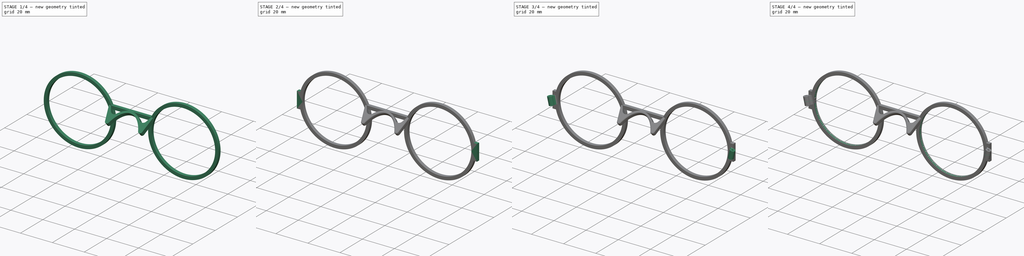
[diagram: build sequence overview — one tinted view per stage of 4, left to right]
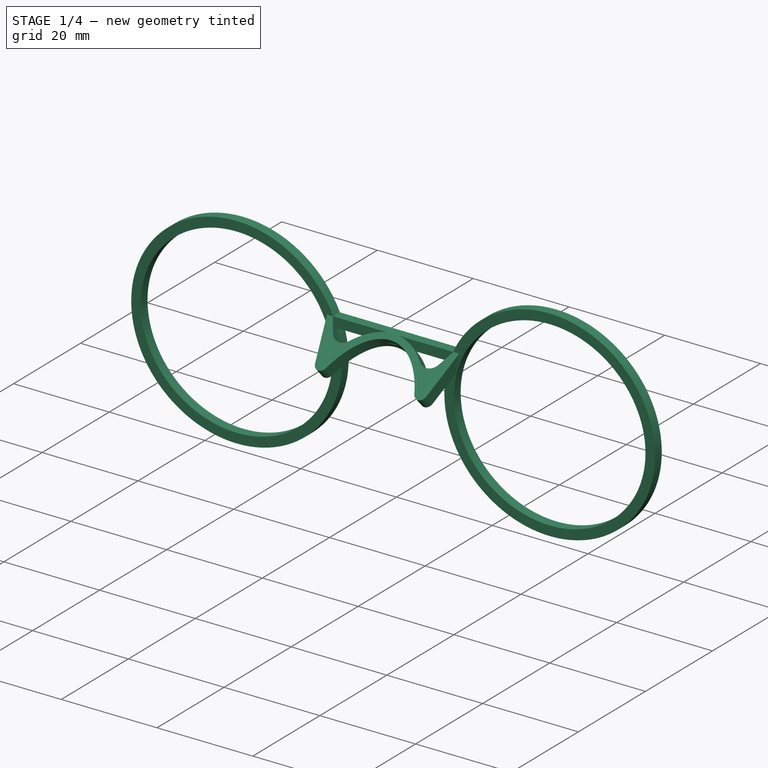
[diagram: stage 1 of 4 — iso view after this stage's code; geometry added in this stage tinted green]
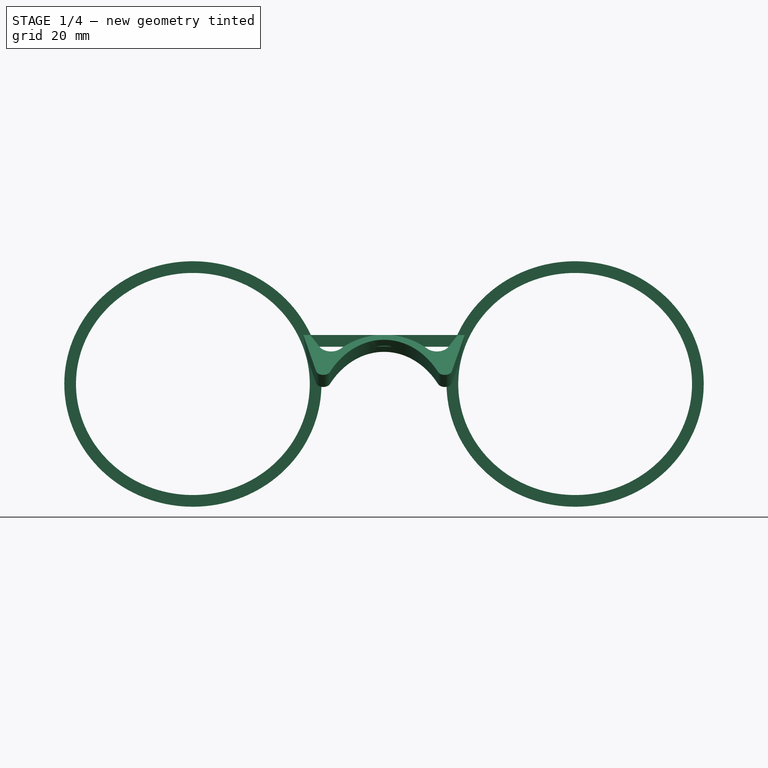
[diagram: stage 1 of 4 — front view after this stage's code; geometry added in this stage tinted green]
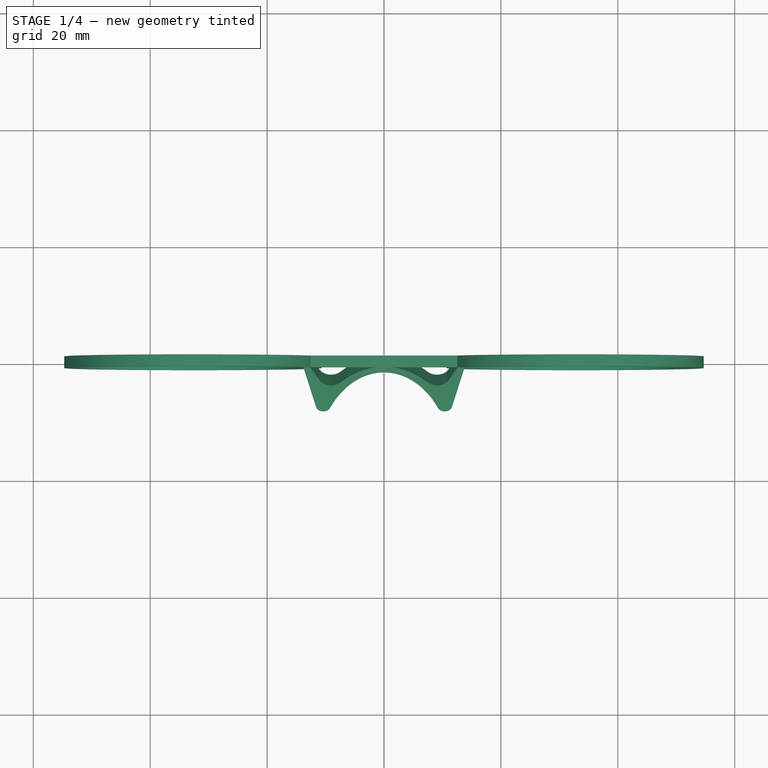
[diagram: stage 1 of 4 — top view after this stage's code; geometry added in this stage tinted green]
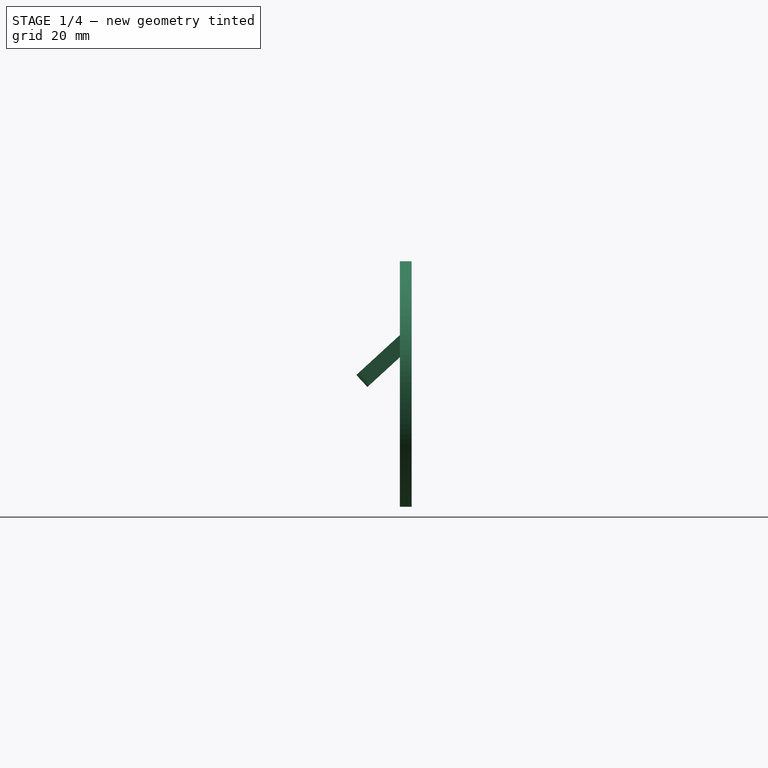
[diagram: stage 1 of 4 — right view after this stage's code; geometry added in this stage tinted green]
FCSTD DOCUMENT  (FreeCAD 1.1R39673 (Git))
Label: frame
License: All rights reserved
LicenseURL: http://en.wikipedia.org/wiki/All_rights_reserved
objects: Sketcher::SketchObject×15, PartDesign::Plane×6, PartDesign::Pad×3, PartDesign::Pocket×3, PartDesign::SubtractivePipe×2, PartDesign::Fillet×1, PartDesign::Line×1, PartDesign::AdditiveLoft×1, PartDesign::Mirrored×1, PartDesign::Body×1, App::Point×1
note: 70 computed .brp shape members not serialized (recipe doc carries the construction recipe); baked Part::Feature solids carry a one-line shape summary decoded from their .brp

FEATURE [Sketcher::SketchObject] Sketch  label="Lenses holder master sketch"
  ArcFitTolerance = 1e-06
  AttachmentSupport = -> [XZ_Plane]
  ExternalTypes = [0]
  FullyConstrained = true
  MakeInternals = false
  MapMode = 5
  Placement = pos=(0,0,0) rot=(1,0,0;1.5708rad)
  sketch-geometry (24):
    g0: Ellipse CenterX=-32.7 CenterY=0 CenterZ=0 NormalX=0 NormalY=0 NormalZ=1 MajorRadius=20 MinorRadius=19 AngleXU=-2.2e-15
    g1: LineSegment [constr] StartX=-12.7 StartY=0 StartZ=0 EndX=-52.7 EndY=0 EndZ=0
    g2: LineSegment [constr] StartX=-32.7 StartY=19 StartZ=0 EndX=-32.7 EndY=-19 EndZ=0
    g3: GeomPoint [constr] X=-26.455 Y=-1.37e-14 Z=0
    g4: GeomPoint [constr] X=-38.945 Y=1.39e-14 Z=0
    g5: Ellipse CenterX=32.7 CenterY=0 CenterZ=0 NormalX=0 NormalY=0 NormalZ=1 MajorRadius=20 MinorRadius=19 AngleXU=0
    g6: LineSegment [constr] StartX=52.7 StartY=0 StartZ=0 EndX=12.7 EndY=0 EndZ=0
    g7: LineSegment [constr] StartX=32.7 StartY=19 StartZ=0 EndX=32.7 EndY=-19 EndZ=0
    g8: GeomPoint [constr] X=38.945 Y=0 Z=0
    g9: GeomPoint [constr] X=26.455 Y=0 Z=0
    g10: ArcOfEllipse CenterX=-32.7 CenterY=0 CenterZ=0 NormalX=0 NormalY=0 NormalZ=1 MajorRadius=22 MinorRadius=21 AngleXU=-4.6e-15 StartAngle=0.410218 EndAngle=6.59162
    g11: LineSegment [constr] StartX=-10.7 StartY=0 StartZ=0 EndX=-54.7 EndY=0 EndZ=0
    g12: LineSegment [constr] StartX=-32.7 StartY=21 StartZ=0 EndX=-32.7 EndY=-21 EndZ=0
    g13: GeomPoint [constr] X=-26.1426 Y=-3.02e-14 Z=0
    g14: GeomPoint [constr] X=-39.2574 Y=3e-14 Z=0
    g15: ArcOfEllipse CenterX=32.7 CenterY=0 CenterZ=0 NormalX=0 NormalY=0 NormalZ=1 MajorRadius=22 MinorRadius=21 AngleXU=0 StartAngle=2.83315 EndAngle=9.01456
    g16: LineSegment [constr] StartX=54.7 StartY=0 StartZ=0 EndX=10.7 EndY=0 EndZ=0
    g17: LineSegment [constr] StartX=32.7 StartY=21 StartZ=0 EndX=32.7 EndY=-21 EndZ=0
    g18: GeomPoint [constr] X=39.2574 Y=0 Z=0
    g19: GeomPoint [constr] X=26.1426 Y=-3e-16 Z=0
    g20: LineSegment StartX=-11.7382 StartY=6.375 StartZ=0 EndX=11.7382 EndY=6.375 EndZ=0
    g21: LineSegment StartX=-12.5253 StartY=8.375 StartZ=0 EndX=12.5253 EndY=8.375 EndZ=0
    g22: Circle CenterX=-32.7 CenterY=0 CenterZ=0 NormalX=0 NormalY=0 NormalZ=1 AngleXU=0 Radius=0.5
    g23: Circle CenterX=32.7 CenterY=0 CenterZ=0 NormalX=0 NormalY=0 NormalZ=1 AngleXU=0 Radius=0.5
  constraints (33):
    c: InternalAlignment(g1-g4 -> g0) x4
    c: PointOnObject(g0,g-1)
    c: Horizontal(g1)
    c: DistanceX(g1,g1) = 40
    c: DistanceY(g2,g2) = 38
    c: InternalAlignment(g6-g9 -> g5) x4
    c: Horizontal(g6)
    c: Equal(g1,g6)
    c: Equal(g7,g2)
    c: Symmetric(g5,g0,g-2)
    c: DistanceX(g0,g5) = 65.4
    c: InternalAlignment(g11-g14 -> g10) x4
    c: Coincident(g10,g0)
    c: Horizontal(g11)
    c: InternalAlignment(g16-g19 -> g15) x4
    c: Symmetric(g0,g15,g-2)
    c: Horizontal(g16)
    c: Equal(g16,g11)
    c: Equal(g17,g12)
    c: Horizontal(g10,g15)
    c: Horizontal(g15,g10)
    c: Coincident(g20,g10)
    c: Coincident(g20,g15)
    c: Coincident(g21,g10)
    c: Coincident(g21,g15)
    c: Distance(g20,g21) = 2
    c: Distance(g-1,g20) = 6.375
    c: Coincident(g22,g0)
    c: Diameter(g22) = 1
    c: Equal(g22,g23)
    c: Symmetric(g22,g23,g-2)
    c: DistanceY(g12,g12) = 42
    c: DistanceX(g11,g11) = 44
FEATURE [PartDesign::Pad] Pad  label="Lenses holder"
  Direction = (0,-1,2e-16)
  Length = 2
  Length2 = 10
  Midplane = true
  Placement = pos=(0,0,0) rot=(1,0,0;1.5708rad)
  Profile = -> Sketch
  ReferenceAxis = -> Sketch [N_Axis]
  Suppressed = false
  Type = 0
FEATURE [Sketcher::SketchObject] Sketch001  label="Nose bridge profile #1"
  ArcFitTolerance = 1e-06
  AttachmentSupport = -> [YZ_Plane]
  ExternalTypes = [0]
  FullyConstrained = true
  MakeInternals = false
  MapMode = 5
  Placement = pos=(0,0,0) rot=(0.57735,0.57735,0.57735;2.0944rad)
  sketch-geometry (1):
    g0: LineSegment StartX=-6 StartY=0 StartZ=0 EndX=0 EndY=5.5 EndZ=0
  constraints (4):
    c: PointOnObject(g0,g-1)
    c: Distance(g0,g-1) = 5.5
    c: PointOnObject(g0,g-2)
    c: DistanceX(g0,g-1) = 6
FEATURE [Sketcher::SketchObject] Sketch002  label="Nose bridge profile #2"
  ArcFitTolerance = 1e-06
  AttachmentSupport = -> [XY_Plane]
  ExternalGeometry = -> [Sketch001]
  ExternalTypes = [0]
  FullyConstrained = true
  MakeInternals = false
  MapMode = 5
  sketch-geometry (1):
    g0: LineSegment StartX=-9.25 StartY=-6 StartZ=0 EndX=9.25 EndY=-6 EndZ=0
  constraints (3):
    c: Symmetric(g0,g0,g-2)
    c: PointOnObject(g-3,g0)
    c: DistanceX(g0,g0) = 18.5
FEATURE [PartDesign::Plane] DatumPlane  label="Nose bridge plane"
  AttachmentSupport = -> [Sketch001,Sketch002]
  Length = 134.588
  MapMode = 13
  Placement = pos=(0,-4,1.83333) rot=(1,0,0;0.741947rad)
  ResizeMode = 0
  Width = 88.7838
FEATURE [Sketcher::SketchObject] Sketch003  label="Nose bridge profile"
  ArcFitTolerance = 1e-06
  AttachmentSupport = -> [DatumPlane]
  ExternalGeometry = -> [Sketch001,Sketch002,Pad]
  ExternalTypes = [0]
  FullyConstrained = true
  MakeInternals = false
  MapMode = 5
  Placement = pos=(0,-4,1.83333) rot=(1,0,0;0.741947rad)
  sketch-geometry (21):
    g0: ArcOfEllipse CenterX=0 CenterY=-15.7131 CenterZ=0 NormalX=0 NormalY=0 NormalZ=1 MajorRadius=21.1394 MinorRadius=11.7303 AngleXU=1.5708 StartAngle=5.37473 EndAngle=7.19164
    g1: LineSegment [constr] StartX=0 StartY=5.42627 StartZ=0 EndX=0 EndY=-36.8525 EndZ=0
    g2: LineSegment [constr] StartX=-11.7303 StartY=-15.7131 StartZ=0 EndX=11.7303 EndY=-15.7131 EndZ=0
    g3: GeomPoint [constr] X=2e-15 Y=1.87305 Z=0
    g4: GeomPoint [constr] X=0 Y=-33.2993 Z=0
    g5: ArcOfEllipse CenterX=0 CenterY=-15.7131 CenterZ=0 NormalX=0 NormalY=0 NormalZ=1 MajorRadius=22.4394 MinorRadius=13.7303 AngleXU=1.5708 StartAngle=5.71213 EndAngle=6.85424
    g6: LineSegment [constr] StartX=-5e-16 StartY=6.72627 StartZ=0 EndX=5e-16 EndY=-38.1525 EndZ=0
    g7: LineSegment [constr] StartX=-13.7303 StartY=-15.7131 StartZ=0 EndX=13.7303 EndY=-15.7131 EndZ=0
    g8: GeomPoint [constr] X=2e-15 Y=2.03525 Z=0
    g9: GeomPoint [constr] X=4e-16 Y=-33.4615 Z=0
    g10: ArcOfCircle CenterX=-10.3972 CenterY=-2.21669 CenterZ=0 NormalX=0 NormalY=0 NormalZ=1 AngleXU=0 Radius=1.25 StartAngle=3.37719 EndAngle=5.87477
    g11: LineSegment StartX=-13.82 StartY=6.68686 StartZ=0 EndX=-11.6127 EndY=-2.50847 EndZ=0
    g12: GeomPoint [constr] X=-9.25 Y=-2.71314 Z=0
    g13: LineSegment StartX=11.6127 StartY=-2.50847 StartZ=0 EndX=13.82 EndY=6.68686 EndZ=0
    g14: ArcOfCircle CenterX=10.3972 CenterY=-2.21669 CenterZ=0 NormalX=0 NormalY=0 NormalZ=1 AngleXU=0 Radius=1.25 StartAngle=3.55001 EndAngle=6.04759
    g15: ArcOfCircle CenterX=-9.05082 CenterY=4.71757 CenterZ=0 NormalX=0 NormalY=0 NormalZ=1 AngleXU=0 Radius=2.25 StartAngle=3.63126 EndAngle=5.52216
    g16: LineSegment StartX=-11.0364 StartY=3.65931 StartZ=0 EndX=-12.65 EndY=6.68686 EndZ=0
    g17: ArcOfCircle CenterX=9.05082 CenterY=4.71757 CenterZ=0 NormalX=0 NormalY=0 NormalZ=1 AngleXU=0 Radius=2.25 StartAngle=3.90262 EndAngle=5.79351
    g18: LineSegment StartX=11.0364 StartY=3.65931 StartZ=0 EndX=12.65 EndY=6.68686 EndZ=0
    g19: LineSegment StartX=-13.82 StartY=6.68686 StartZ=0 EndX=-12.65 EndY=6.68686 EndZ=0
    g20: LineSegment StartX=12.65 StartY=6.68686 StartZ=0 EndX=13.82 EndY=6.68686 EndZ=0
  constraints (39):
    c: InternalAlignment(g1-g4 -> g0) x4
    c: PointOnObject(g0,g-2)
    c: Coincident(g-3,g1)
    c: PointOnObject(g-4,g0)
    c: Distance(g0,g-4) = 13
    c: InternalAlignment(g6-g9 -> g5) x4
    c: Coincident(g5,g0)
    c: DistanceY(g1,g6) = 1.3
    c: Distance(g2,g7) = 2
    c: Horizontal(g7)
    c: Tangent(g10,g11) = -1.5708
    c: Coincident(g-4,g10)
    c: PointOnObject(g12,g0)
    c: PointOnObject(g12,g10)
    c: Tangent(g0,g10,g12) = 1.5708
    c: Symmetric(g10,g13,g-2)
    c: Coincident(g-4,g14)
    c: Tangent(g13,g14) = -1.5708
    c: PointOnObject(g0,g-4)
    c: PointOnObject(g0,g-4)
    c: Radius(g10) = 1.25
    c: Horizontal(g5,g5)
    c: Coincident(g15,g5)
    c: Tangent(g16,g15) = 1.5708
    c: Symmetric(g15,g17,g-2)
    c: Tangent(g17,g5) = 1.5708
    c: Tangent(g18,g17) = -1.5708
    c: Radius(g15) = 2.25
    c: Distance(g15,g11) = 2
    c: Horizontal(g19)
    c: Distance(g19,g-4) = 9.4
    c: DistanceX(g19,g-1) = 13.82
    c: Distance(g19,g-2) = 12.65
    c: Coincident(g11,g19)
    c: Coincident(g16,g19)
    c: Symmetric(g11,g13,g-2)
    c: Symmetric(g16,g18,g-2)
    c: Coincident(g20,g18)
    c: Coincident(g20,g13)
FEATURE [PartDesign::Pad] Pad001  label="Nose bridge #1"
  BaseFeature = -> Pad
  Direction = (0,-0.675725,0.737154)
  Length = 2.8
  Length2 = 10
  Placement = pos=(0,0,0) rot=(1,0,0;1.5708rad)
  Profile = -> Sketch003
  ReferenceAxis = -> Sketch003 [N_Axis]
  Refine = true
  Suppressed = false
  Type = 0
FEATURE [Sketcher::SketchObject] Sketch010
  ArcFitTolerance = 1e-06
  AttachmentSupport = -> [Pad001]
  ExternalGeometry = -> [Pad001]
  ExternalTypes = [0]
  FullyConstrained = true
  MakeInternals = false
  MapMode = 5
  Placement = pos=(0,1.9e-15,8.375) rot=(0,0,1;3.14159rad)
  sketch-geometry (4):
    g0: LineSegment StartX=-12.5253 StartY=1 StartZ=0 EndX=-12.5253 EndY=-1 EndZ=0
    g1: LineSegment StartX=-12.5253 StartY=-1 StartZ=0 EndX=12.5253 EndY=-1 EndZ=0
    g2: LineSegment StartX=12.5253 StartY=-1 StartZ=0 EndX=12.5253 EndY=1 EndZ=0
    g3: LineSegment StartX=12.5253 StartY=1 StartZ=0 EndX=-12.5253 EndY=1 EndZ=0
  constraints (10):
    c: Coincident(g0,g1)
    c: Coincident(g1,g2)
    c: Coincident(g2,g3)
    c: Coincident(g3,g0)
    c: Vertical(g0)
    c: Vertical(g2)
    c: Horizontal(g1)
    c: Horizontal(g3)
    c: Coincident(g-3,g0)
    c: Coincident(g-4,g1)
FEATURE [PartDesign::Pocket] Pocket002  label="Nose bridge #2"
  BaseFeature = -> Pad001
  Direction = (0,0,-1)
  Length = 5
  Length2 = 5
  Placement = pos=(0,0,0) rot=(1,0,0;1.5708rad)
  Profile = -> Sketch010
  ReferenceAxis = -> Sketch010 [N_Axis]
  Refine = true
  Reversed = true
  Suppressed = false
  Type = 1
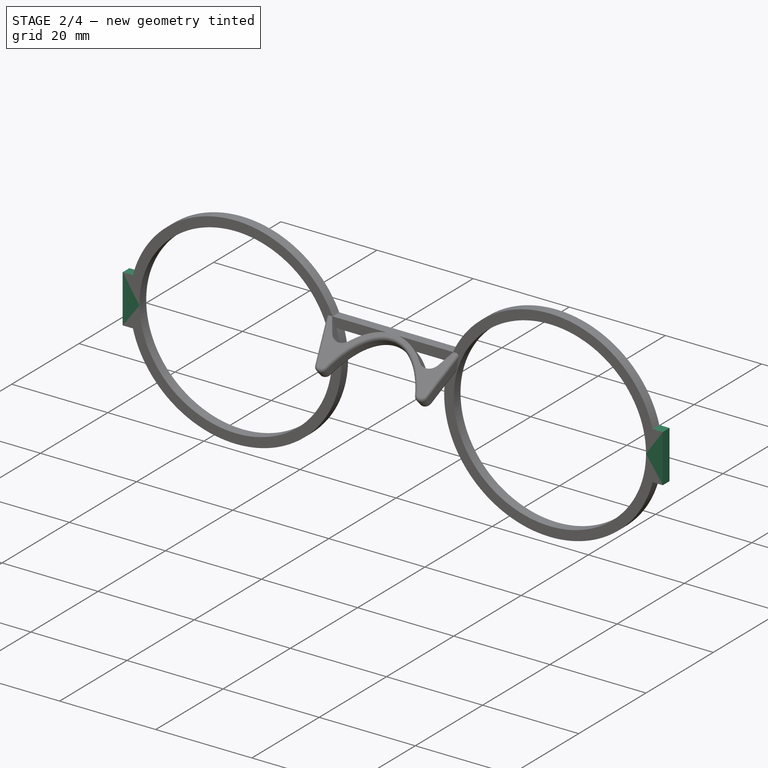
[diagram: stage 2 of 4 — iso view after this stage's code; geometry added in this stage tinted green]
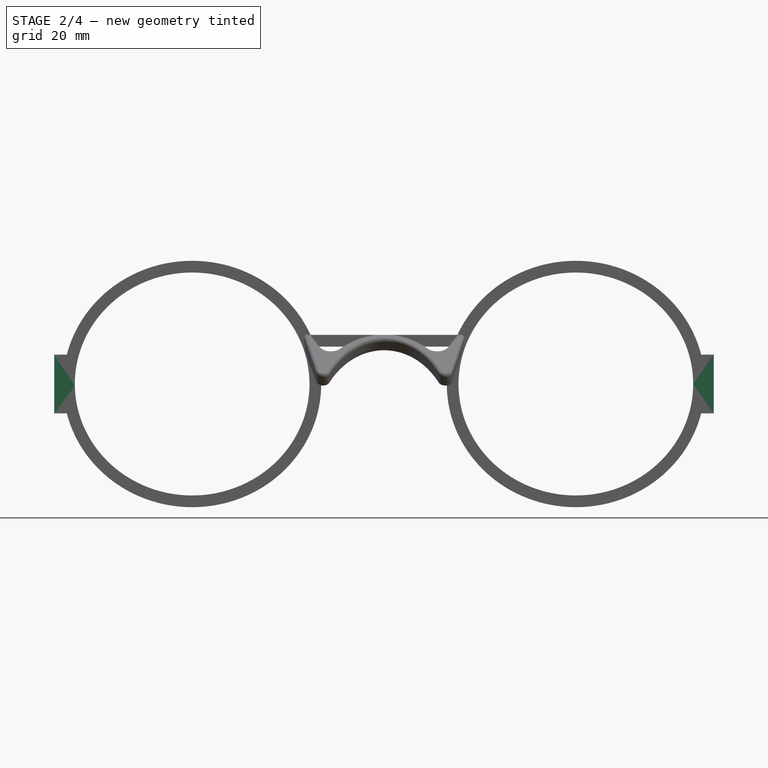
[diagram: stage 2 of 4 — front view after this stage's code; geometry added in this stage tinted green]
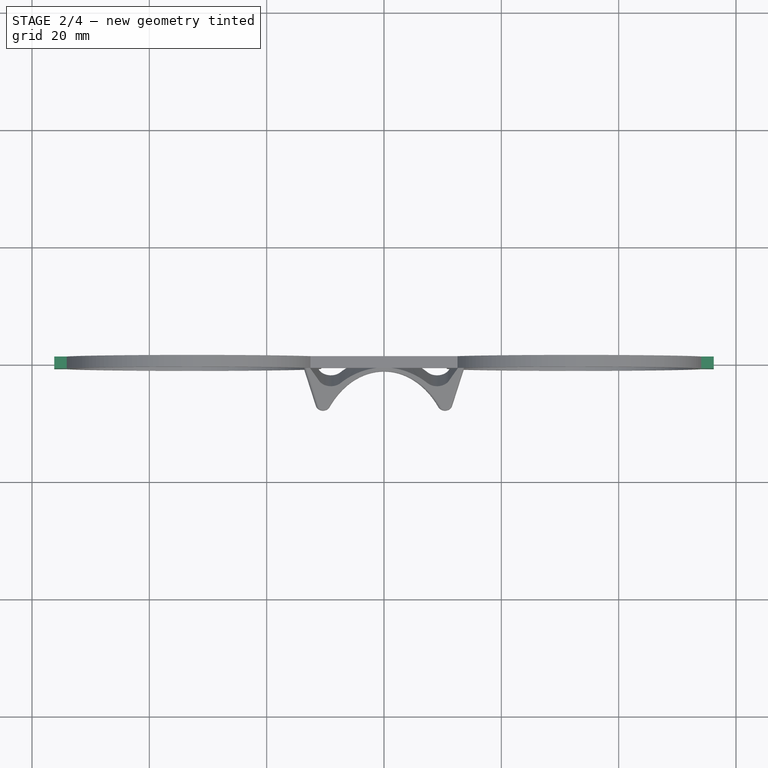
[diagram: stage 2 of 4 — top view after this stage's code; geometry added in this stage tinted green]
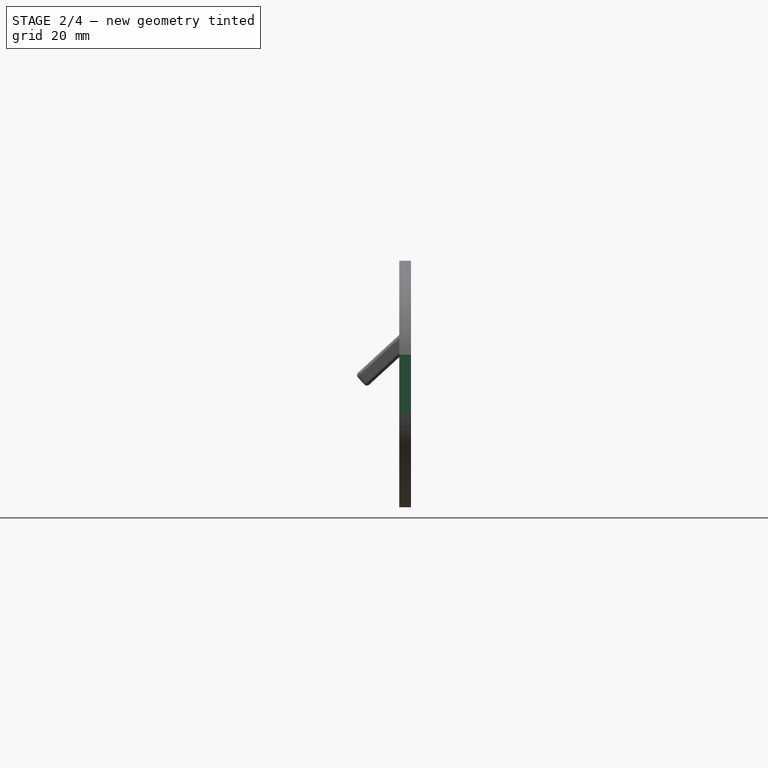
[diagram: stage 2 of 4 — right view after this stage's code; geometry added in this stage tinted green]
FEATURE [Sketcher::SketchObject] Sketch011
  ArcFitTolerance = 1e-06
  AttachmentSupport = -> [DatumPlane]
  ExternalGeometry = -> [Pocket002]
  ExternalTypes = [0]
  FullyConstrained = true
  MakeInternals = false
  MapMode = 5
  Placement = pos=(0,-4,1.83333) rot=(1,0,0;0.741947rad)
  sketch-geometry (5):
    g0: Ellipse CenterX=0 CenterY=-15.7131 CenterZ=0 NormalX=0 NormalY=0 NormalZ=1 MajorRadius=21.1394 MinorRadius=11.7303 AngleXU=1.5708
    g1: LineSegment [constr] StartX=0 StartY=5.42627 StartZ=0 EndX=0 EndY=-36.8525 EndZ=0
    g2: LineSegment [constr] StartX=-11.7303 StartY=-15.7131 StartZ=0 EndX=11.7303 EndY=-15.7131 EndZ=0
    g3: GeomPoint [constr] X=2e-15 Y=1.87305 Z=0
    g4: GeomPoint [constr] X=4e-16 Y=-33.2993 Z=0
  constraints (4):
    c: InternalAlignment(g1-g4 -> g0) x4
    c: Coincident(g0,g-3)
    c: Equal(g-3,g0)
    c: Vertical(g1)
FEATURE [PartDesign::Pocket] Pocket003  label="Nose bridge #3"
  BaseFeature = -> Pocket002
  Direction = (0,0.675725,-0.737154)
  Length = 5
  Length2 = 5
  Midplane = true
  Placement = pos=(0,0,0) rot=(1,0,0;1.5708rad)
  Profile = -> Sketch011
  ReferenceAxis = -> Sketch011 [N_Axis]
  Refine = true
  Suppressed = false
  Type = 1
FEATURE [PartDesign::Fillet] Fillet  label="Nose bridge #4"
  Base = -> Pocket003 [Edge55,Edge54,Edge40]
  BaseFeature = -> Pocket003
  Placement = pos=(0,0,0) rot=(1,0,0;1.5708rad)
  Radius = 0.6
  Refine = true
  SupportTransform = false
  Suppressed = false
  UseAllEdges = false
FEATURE [Sketcher::SketchObject] Sketch008  label="Hinges mid profile"
  ArcFitTolerance = 1e-06
  AttachmentSupport = -> [XY_Plane]
  ExternalGeometry = -> [Fillet]
  ExternalTypes = [0]
  FullyConstrained = true
  MakeInternals = false
  MapMode = 5
  sketch-geometry (14):
    g0: Circle CenterX=-56.2 CenterY=-2.5 CenterZ=0 NormalX=0 NormalY=0 NormalZ=1 AngleXU=0 Radius=0.55
    g1: Circle [constr] CenterX=-56.2 CenterY=-2.5 CenterZ=0 NormalX=0 NormalY=0 NormalZ=1 AngleXU=0 Radius=1.5
    g2: LineSegment [constr] StartX=-54.7 StartY=1 StartZ=0 EndX=-54.7 EndY=-1 EndZ=0
    g3: ArcOfCircle CenterX=-56.2 CenterY=-2.5 CenterZ=0 NormalX=0 NormalY=0 NormalZ=1 AngleXU=0 Radius=1.5 StartAngle=1.5708 EndAngle=6.28319
    g4: ArcOfCircle CenterX=-53.2 CenterY=-2.5 CenterZ=0 NormalX=0 NormalY=0 NormalZ=1 AngleXU=0 Radius=1.5 StartAngle=1.5708 EndAngle=3.14159
    g5: LineSegment StartX=-53.2 StartY=-1 StartZ=0 EndX=-53.2 EndY=1 EndZ=0
    g6: LineSegment StartX=-56.2 StartY=1 StartZ=0 EndX=-53.2 EndY=1 EndZ=0
    g7: Circle CenterX=56.2 CenterY=-2.5 CenterZ=0 NormalX=0 NormalY=0 NormalZ=1 AngleXU=0 Radius=0.55
    g8: ArcOfCircle CenterX=56.2 CenterY=-2.5 CenterZ=0 NormalX=0 NormalY=0 NormalZ=1 AngleXU=0 Radius=1.5 StartAngle=3.14159 EndAngle=7.85398
    g9: ArcOfCircle CenterX=53.2 CenterY=-2.5 CenterZ=0 NormalX=0 NormalY=0 NormalZ=1 AngleXU=0 Radius=1.5 StartAngle=0 EndAngle=1.5708
    g10: LineSegment StartX=53.2 StartY=-1 StartZ=0 EndX=53.2 EndY=1 EndZ=0
    g11: LineSegment StartX=56.2 StartY=1 StartZ=0 EndX=53.2 EndY=1 EndZ=0
    g12: LineSegment StartX=-56.2 StartY=-1 StartZ=0 EndX=-56.2 EndY=1 EndZ=0
    g13: LineSegment StartX=56.2 StartY=-1 StartZ=0 EndX=56.2 EndY=1 EndZ=0
  constraints (39):
    c: Coincident(g1,g0)
    c: Diameter(g1) = 3
    c: Diameter(g0) = 1.1
    c: Tangent(g1,g2)
    c: Coincident(g3,g0)
    c: Equal(g1,g3)
    c: Horizontal(g3,g0)
    c: Coincident(g4,g3)
    c: Horizontal(g4,g0)
    c: Vertical(g4,g4)
    c: Vertical(g5)
    c: Coincident(g6,g5)
    c: Horizontal(g6)
    c: PointOnObject(g2,g6)
    c: Coincident(g8,g7)
    c: Coincident(g9,g8)
    c: Coincident(g11,g10)
    c: Symmetric(g0,g7,g-2)
    c: Symmetric(g9,g4,g-2)
    c: Symmetric(g10,g5,g-2)
    c: Horizontal(g11)
    c: Equal(g8,g3)
    c: Horizontal(g9,g8)
    c: Vertical(g9,g9)
    c: Equal(g7,g0)
    c: Vertical(g0,g3)
    c: Coincident(g12,g3)
    c: Coincident(g12,g6)
    c: Vertical(g7,g8)
    c: Coincident(g13,g8)
    c: Coincident(g13,g11)
    c: Vertical(g13)
    c: Horizontal(g5,g2)
    c: Coincident(g5,g4)
    c: Coincident(g10,g9)
    c: Coincident(g2,g-3)
    c: Vertical(g2)
    c: Tangent(g1,g-3)
    c: Symmetric(g6,g3,g-1)
FEATURE [Sketcher::SketchObject] Sketch012
  ArcFitTolerance = 1e-06
  AttachmentSupport = -> [XY_Plane]
  ExternalGeometry = -> [Sketch008]
  ExternalTypes = [0]
  FullyConstrained = true
  MakeInternals = false
  MapMode = 5
  sketch-geometry (8):
    g0: LineSegment StartX=-53.2 StartY=1 StartZ=0 EndX=-56.2 EndY=1 EndZ=0
    g1: LineSegment StartX=-56.2 StartY=1 StartZ=0 EndX=-56.2 EndY=-1 EndZ=0
    g2: LineSegment StartX=-56.2 StartY=-1 StartZ=0 EndX=-53.2 EndY=-1 EndZ=0
    g3: LineSegment StartX=-53.2 StartY=-1 StartZ=0 EndX=-53.2 EndY=1 EndZ=0
    g4: LineSegment StartX=53.2 StartY=-1 StartZ=0 EndX=53.2 EndY=1 EndZ=0
    g5: LineSegment StartX=53.2 StartY=1 StartZ=0 EndX=56.2 EndY=1 EndZ=0
    g6: LineSegment StartX=56.2 StartY=1 StartZ=0 EndX=56.2 EndY=-1 EndZ=0
    g7: LineSegment StartX=56.2 StartY=-1 StartZ=0 EndX=53.2 EndY=-1 EndZ=0
  constraints (20):
    c: Coincident(g0,g1)
    c: Coincident(g1,g2)
    c: Coincident(g2,g3)
    c: Coincident(g3,g0)
    c: Horizontal(g0)
    c: Horizontal(g2)
    c: Vertical(g1)
    c: Vertical(g3)
    c: Coincident(g0,g-3)
    c: Coincident(g1,g-4)
    c: Coincident(g4,g5)
    c: Coincident(g5,g6)
    c: Coincident(g6,g7)
    c: Coincident(g7,g4)
    c: Symmetric(g6,g1,g-2)
    c: Symmetric(g4,g0,g-2)
    c: Horizontal(g5)
    c: Vertical(g6)
    c: Vertical(g4)
    c: Horizontal(g7)
FEATURE [Sketcher::SketchObject] Sketch014  label="Lens grooves paths"
  ArcFitTolerance = 1e-06
  AttachmentSupport = -> [XZ_Plane]
  ExternalGeometry = -> [Sketch]
  ExternalTypes = [0]
  FullyConstrained = true
  MakeInternals = false
  MapMode = 5
  Placement = pos=(0,0,0) rot=(1,0,0;1.5708rad)
  sketch-geometry (13):
    g0: ArcOfEllipse CenterX=32.7 CenterY=0 CenterZ=0 NormalX=0 NormalY=0 NormalZ=1 MajorRadius=20 MinorRadius=19 AngleXU=1e-16 StartAngle=0.0770976 EndAngle=6.20609
    g1: LineSegment [constr] StartX=52.7 StartY=1.2e-15 StartZ=0 EndX=12.7 EndY=-1.2e-15 EndZ=0
    g2: LineSegment [constr] StartX=32.7 StartY=19 StartZ=0 EndX=32.7 EndY=-19 EndZ=0
    g3: GeomPoint [constr] X=38.945 Y=6e-16 Z=0
    g4: GeomPoint [constr] X=26.455 Y=-4e-16 Z=0
    g5: LineSegment [constr] StartX=52.6406 StartY=1.4634 StartZ=0 EndX=52.6406 EndY=-1.4634 EndZ=0
    g6: LineSegment [constr] StartX=32.7 StartY=0 StartZ=0 EndX=53.1392 EndY=1.5 EndZ=0
    g7: LineSegment [constr] StartX=32.7 StartY=0 StartZ=0 EndX=53.1392 EndY=-1.5 EndZ=0
    g8: ArcOfEllipse CenterX=-32.7 CenterY=3.35e-14 CenterZ=0 NormalX=0 NormalY=0 NormalZ=1 MajorRadius=20 MinorRadius=19 AngleXU=-3.14159 StartAngle=0.0770976 EndAngle=6.20609
    g9: LineSegment [constr] StartX=-52.7 StartY=3.19e-14 StartZ=0 EndX=-12.7 EndY=3.51e-14 EndZ=0
    g10: LineSegment [constr] StartX=-32.7 StartY=19 StartZ=0 EndX=-32.7 EndY=-19 EndZ=0
    g11: GeomPoint [constr] X=-38.945 Y=3.27e-14 Z=0
    g12: GeomPoint [constr] X=-26.455 Y=3.4e-14 Z=0
  constraints (20):
    c: InternalAlignment(g1-g4 -> g0) x4
    c: Coincident(g0,g-3)
    c: Equal(g0,g-3)
    c: Vertical(g2)
    c: Vertical(g5)
    c: Coincident(g0,g5)
    c: Coincident(g0,g5)
    c: Coincident(g6,g0)
    c: Coincident(g7,g0)
    c: PointOnObject(g0,g6)
    c: PointOnObject(g0,g7)
    c: Equal(g6,g7)
    c: Distance(g0,g6) = 0.5
    c: DistanceY(g7,g6) = 3
    c: InternalAlignment(g9-g12 -> g8) x4
    c: Vertical(g10)
    c: Symmetric(g8,g0,g-2)
    c: Symmetric(g8,g0,g-2)
    c: Equal(g9,g1)
    c: Equal(g10,g2)
FEATURE [PartDesign::Plane] DatumPlane001  label="Right lens groove start plane"
  AttachmentSupport = -> [Sketch014]
  Length = 92.1419
  MapMode = 8
  Placement = pos=(52.6406,3e-16,1.4634) rot=(0.999177,0,0.040558;3.14159rad)
  ResizeMode = 0
  Width = 62.6119
FEATURE [PartDesign::Plane] DatumPlane002  label="Left lens groove start plane"
  AttachmentSupport = -> [Sketch014]
  Length = 92.1419
  MapMode = 8
  Placement = pos=(-52.6406,3e-16,1.4634) rot=(0.040558,0,0.999177;3.14159rad)
  ResizeMode = 0
  Width = 62.6119
FEATURE [PartDesign::Plane] DatumPlane003  label="Through-hinges vertical plane"
  AttachmentSupport = -> [XZ_Plane,Sketch008]
  Length = 60
  MapMode = 53
  Placement = pos=(0,-2.5,-6e-16) rot=(1,0,0;1.5708rad)
  ResizeMode = 0
  Width = 60
FEATURE [Sketcher::SketchObject] Sketch017  label="Hinges axes"
  ArcFitTolerance = 1e-06
  AttachmentSupport = -> [DatumPlane003]
  ExternalGeometry = -> [Sketch008]
  ExternalTypes = [0]
  FullyConstrained = true
  MakeInternals = false
  MapMode = 5
  Placement = pos=(0,-2.5,-6e-16) rot=(1,0,0;1.5708rad)
  sketch-geometry (5):
    g0: LineSegment [constr] StartX=-56.75 StartY=6e-16 StartZ=0 EndX=-56.2 EndY=6e-16 EndZ=0
    g1: LineSegment [constr] StartX=-55.65 StartY=6e-16 StartZ=0 EndX=-56.2 EndY=6e-16 EndZ=0
    g2: LineSegment StartX=-56.7624 StartY=2.43593 StartZ=0 EndX=-55.6376 EndY=-2.43593 EndZ=0
    g3: LineSegment [constr] StartX=-56.2 StartY=6e-16 StartZ=0 EndX=-56.2 EndY=2.43593 EndZ=0
    g4: LineSegment StartX=56.7624 StartY=2.43593 StartZ=0 EndX=55.6376 EndY=-2.43593 EndZ=0
  constraints (12):
    c: Coincident(g0,g-3)
    c: Coincident(g1,g-3)
    c: Coincident(g1,g0)
    c: Symmetric(g1,g0,g0)
    c: Coincident(g3,g0)
    c: Vertical(g3)
    c: Symmetric(g2,g2,g0)
    c: Horizontal(g3,g2)
    c: Angle(g3,g2) = 0.226893
    c: Distance(g2,g2) = 5
    c: Symmetric(g2,g4,g-2)
    c: Symmetric(g2,g4,g-2)
FEATURE [PartDesign::Pad] Pad003  label="End pieces"
  BaseFeature = -> Fillet
  Direction = (0,0,1)
  Length = 10
  Length2 = 10
  Midplane = true
  Placement = pos=(0,0,0) rot=(1,0,0;1.5708rad)
  Profile = -> Sketch012
  ReferenceAxis = -> Sketch012 [N_Axis]
  Refine = true
  Suppressed = false
  Type = 0
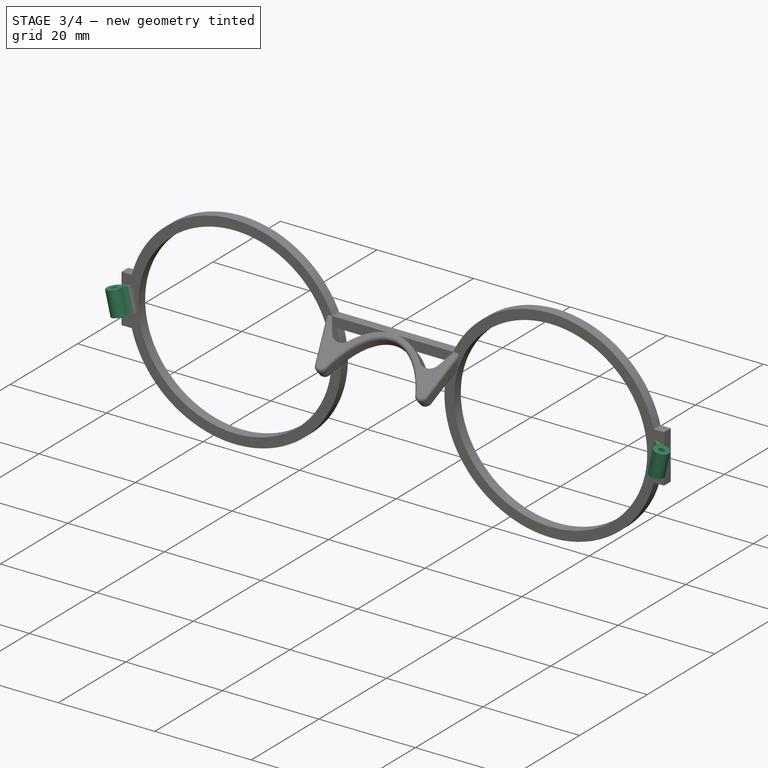
[diagram: stage 3 of 4 — iso view after this stage's code; geometry added in this stage tinted green]
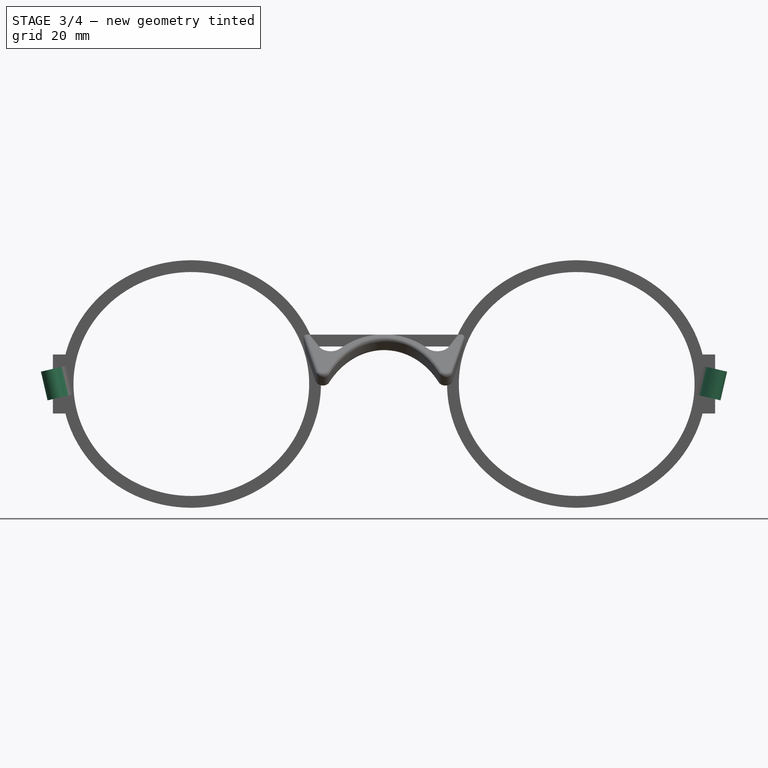
[diagram: stage 3 of 4 — front view after this stage's code; geometry added in this stage tinted green]
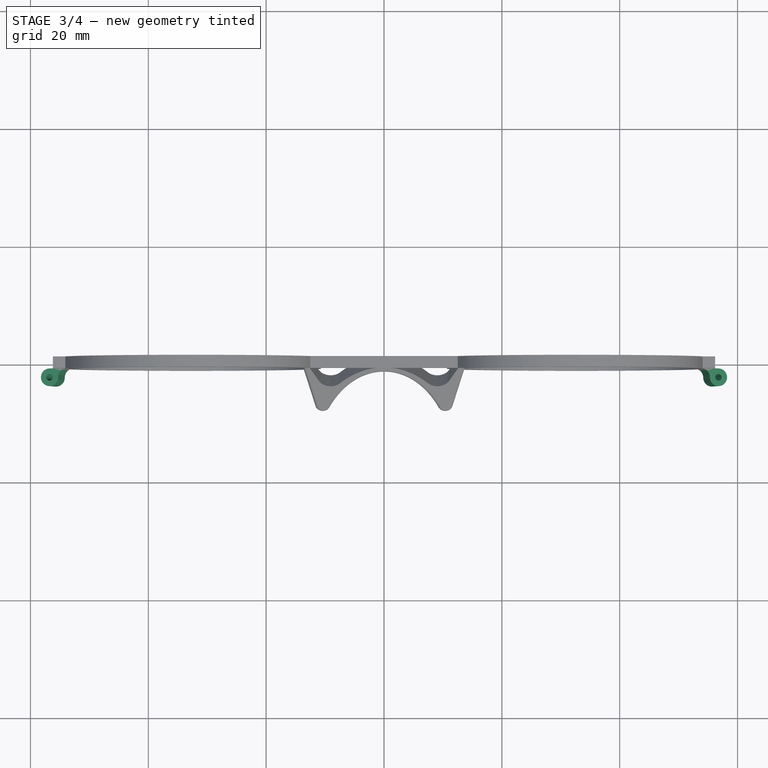
[diagram: stage 3 of 4 — top view after this stage's code; geometry added in this stage tinted green]
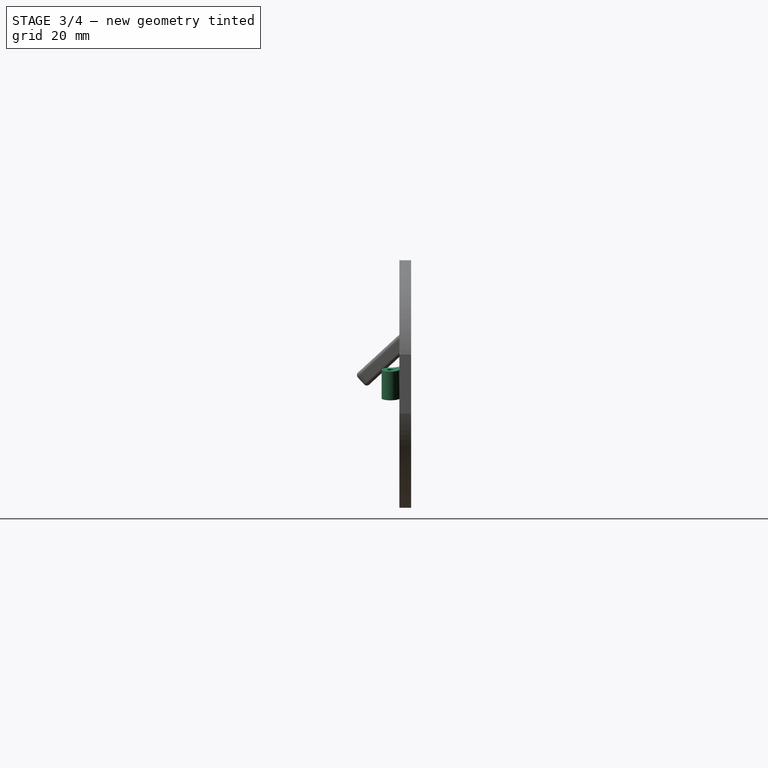
[diagram: stage 3 of 4 — right view after this stage's code; geometry added in this stage tinted green]
FEATURE [PartDesign::Plane] DatumPlane004  label="Left hinge top profile plane"
  AttachmentSupport = -> [Sketch017]
  Length = 63.0187
  MapMode = 7
  Placement = pos=(-56.7624,-2.5,2.43593) rot=(0.112485,-0.112485,-0.987266;1.58361rad)
  ResizeMode = 0
  Width = 97.7613
FEATURE [PartDesign::Plane] DatumPlane005  label="Left hinge bottom profile plane"
  AttachmentSupport = -> [Sketch017]
  Length = 63.0187
  MapMode = 7
  Placement = pos=(-55.6376,-2.5,-2.43593) rot=(0.112485,-0.112485,-0.987266;1.58361rad)
  ResizeMode = 0
  Width = 97.7613
FEATURE [Sketcher::SketchObject] Sketch018
  ArcFitTolerance = 1e-06
  AttachmentSupport = -> [DatumPlane004]
  ExternalGeometry = -> [Sketch008]
  ExternalTypes = [0]
  FullyConstrained = true
  MakeInternals = false
  MapMode = 5
  Placement = pos=(-56.7624,-2.5,2.43593) rot=(0.112485,-0.112485,-0.987266;1.58361rad)
  sketch-geometry (7):
    g0: LineSegment [constr] StartX=0 StartY=0 StartZ=0 EndX=0.55 EndY=0 EndZ=0
    g1: LineSegment [constr] StartX=0.55 StartY=0 StartZ=0 EndX=1.5 EndY=0 EndZ=0
    g2: Circle CenterX=0 CenterY=0 CenterZ=0 NormalX=0 NormalY=0 NormalZ=1 AngleXU=0 Radius=0.55
    g3: ArcOfCircle CenterX=0 CenterY=0 CenterZ=0 NormalX=0 NormalY=0 NormalZ=1 AngleXU=0 Radius=1.5 StartAngle=3.87634 EndAngle=7.85398
    g4: LineSegment StartX=-1.5 StartY=0 StartZ=0 EndX=-1.5 EndY=2.92311 EndZ=0
    g5: ArcOfEllipse CenterX=-2e-16 CenterY=2.92311 CenterZ=0 NormalX=0 NormalY=0 NormalZ=1 MajorRadius=1.5 MinorRadius=1.42311 AngleXU=-3.14159 StartAngle=0 EndAngle=1.5708
    g6: ArcOfCircle CenterX=0 CenterY=0 CenterZ=0 NormalX=0 NormalY=0 NormalZ=1 AngleXU=0 Radius=1.5 StartAngle=3.14159 EndAngle=3.87634
  constraints (21):
    c: Coincident(g0,g-1)
    c: PointOnObject(g0,g-4)
    c: Coincident(g1,g0)
    c: PointOnObject(g1,g-3)
    c: Horizontal(g0)
    c: Horizontal(g1)
    c: Coincident(g2,g0)
    c: PointOnObject(g0,g2)
    c: Coincident(g3,g0)
    c: PointOnObject(g4,g-1)
    c: PointOnObject(g1,g3)
    c: PointOnObject(g3,g-2)
    c: Coincident(g4,g-5)
    c: Horizontal(g4,g5)
    c: Tangent(g5,g3) = 1.5708
    c: Tangent(g5,g4) = 1.5708
    c: Distance(g3,g4) = 0.387
    c: PointOnObject(g4,g-3)
    c: Coincident(g6,g0)
    c: Coincident(g3,g6)
    c: PointOnObject(g6,g-1)
FEATURE [Sketcher::SketchObject] Sketch013
  ArcFitTolerance = 1e-06
  AttachmentSupport = -> [XZ_Plane]
  ExternalGeometry = -> [Sketch,Sketch018]
  ExternalTypes = [0]
  FullyConstrained = true
  MakeInternals = false
  MapMode = 5
  Placement = pos=(0,0,0) rot=(1,0,0;1.5708rad)
  sketch-geometry (8):
    g0: LineSegment StartX=-58.2239 StartY=-0.05 StartZ=0 EndX=-58.2239 EndY=0.05 EndZ=0
    g1: LineSegment StartX=-58.2239 StartY=0.05 StartZ=0 EndX=-52.6999 EndY=0.05 EndZ=0
    g2: LineSegment StartX=-52.6999 StartY=0.05 StartZ=0 EndX=-52.6999 EndY=-0.05 EndZ=0
    g3: LineSegment StartX=-52.6999 StartY=-0.05 StartZ=0 EndX=-58.2239 EndY=-0.05 EndZ=0
    g4: LineSegment StartX=52.6999 StartY=-0.05 StartZ=0 EndX=52.6999 EndY=0.05 EndZ=0
    g5: LineSegment StartX=52.6999 StartY=0.05 StartZ=0 EndX=58.2239 EndY=0.05 EndZ=0
    g6: LineSegment StartX=58.2239 StartY=0.05 StartZ=0 EndX=58.2239 EndY=-0.05 EndZ=0
    g7: LineSegment StartX=58.2239 StartY=-0.05 StartZ=0 EndX=52.6999 EndY=-0.05 EndZ=0
  constraints (20):
    c: Coincident(g0,g1)
    c: Coincident(g2,g3)
    c: Coincident(g3,g0)
    c: Symmetric(g0,g0,g-1)
    c: Symmetric(g2,g1,g-1)
    c: Coincident(g1,g2)
    c: Horizontal(g1)
    c: Coincident(g4,g5)
    c: Coincident(g5,g6)
    c: Coincident(g6,g7)
    c: Coincident(g7,g4)
    c: Symmetric(g0,g5,g-2)
    c: Symmetric(g2,g4,g-2)
    c: Vertical(g4)
    c: Vertical(g6)
    c: Horizontal(g7)
    c: Horizontal(g5)
    c: DistanceY(g0,g0) = 0.1
    c: PointOnObject(g1,g-3)
    c: PointOnObject(g-4,g0)
FEATURE [PartDesign::Line] DatumLine001  label="Edge of left endpiece on left hinge bottom profile plane"
  AttacherType = Attacher::AttachEngineLine
  AttachmentSupport = -> [DatumPlane005,Pad003]
  Length = 20
  MapMode = 30
  Placement = pos=(-56.2,-2.5,-2.56576) rot=(0,0.707107,0.707107;3.14159rad)
  ResizeMode = 0
FEATURE [Sketcher::SketchObject] Sketch019
  ArcFitTolerance = 1e-06
  AttachmentSupport = -> [DatumPlane005]
  ExternalGeometry = -> [Sketch008,DatumLine001]
  ExternalTypes = [0]
  FullyConstrained = true
  MakeInternals = false
  MapMode = 5
  Placement = pos=(-55.6376,-2.5,-2.43593) rot=(0.112485,-0.112485,-0.987266;1.58361rad)
  sketch-geometry (7):
    g0: LineSegment [constr] StartX=0 StartY=0 StartZ=0 EndX=0.55 EndY=0 EndZ=0
    g1: LineSegment [constr] StartX=0.55 StartY=0 StartZ=0 EndX=1.5 EndY=0 EndZ=0
    g2: Circle CenterX=0 CenterY=0 CenterZ=0 NormalX=0 NormalY=0 NormalZ=1 AngleXU=0 Radius=0.55
    g3: ArcOfCircle CenterX=0 CenterY=0 CenterZ=0 NormalX=0 NormalY=0 NormalZ=1 AngleXU=0 Radius=1.5 StartAngle=3.87623 EndAngle=7.85398
    g4: LineSegment StartX=-1.11311 StartY=-1.00547 StartZ=0 EndX=-1.5 EndY=-0.57717 EndZ=0
    g5: LineSegment StartX=-1.5 StartY=-0.57717 StartZ=0 EndX=-1.5 EndY=2.92311 EndZ=0
    g6: ArcOfEllipse CenterX=0 CenterY=2.92311 CenterZ=0 NormalX=0 NormalY=0 NormalZ=1 MajorRadius=1.5 MinorRadius=1.42311 AngleXU=9e-16 StartAngle=3.14159 EndAngle=4.71239
  constraints (20):
    c: Coincident(g0,g-4)
    c: PointOnObject(g0,g-3)
    c: Coincident(g0,g1)
    c: PointOnObject(g1,g-4)
    c: Horizontal(g0)
    c: Horizontal(g1)
    c: Coincident(g2,g0)
    c: PointOnObject(g0,g2)
    c: Coincident(g3,g0)
    c: PointOnObject(g3,g-2)
    c: PointOnObject(g1,g3)
    c: PointOnObject(g4,g-5)
    c: Coincident(g5,g4)
    c: Vertical(g5)
    c: Tangent(g4,g3) = 1.5708
    c: Tangent(g5,g6) = 1.5708
    c: Coincident(g5,g-6)
    c: Tangent(g6,g3) = 1.5708
    c: PointOnObject(g6,g-2)
    c: Distance(g3,g5) = 0.386887
FEATURE [PartDesign::AdditiveLoft] AdditiveLoft  label="Left hinge"
  BaseFeature = -> Pad003
  Closed = false
  Placement = pos=(0,0,0) rot=(1,0,0;1.5708rad)
  Profile = -> Sketch018
  Refine = true
  Ruled = false
  Sections = -> [Sketch019]
  Suppressed = false
FEATURE [PartDesign::Mirrored] Mirrored  label="Right hinge"
  BaseFeature = -> AdditiveLoft
  MirrorPlane = -> YZ_Plane
  Originals = -> [AdditiveLoft]
  Placement = pos=(0,0,0) rot=(1,0,0;1.5708rad)
  Suppressed = false
  TransformMode = 0
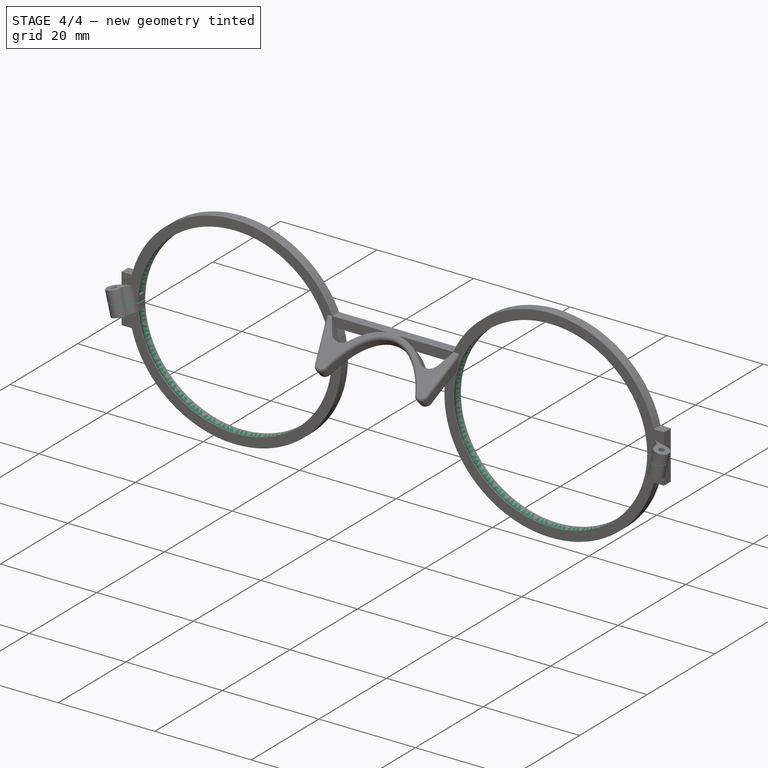
[diagram: stage 4 of 4 — iso view after this stage's code; geometry added in this stage tinted green]
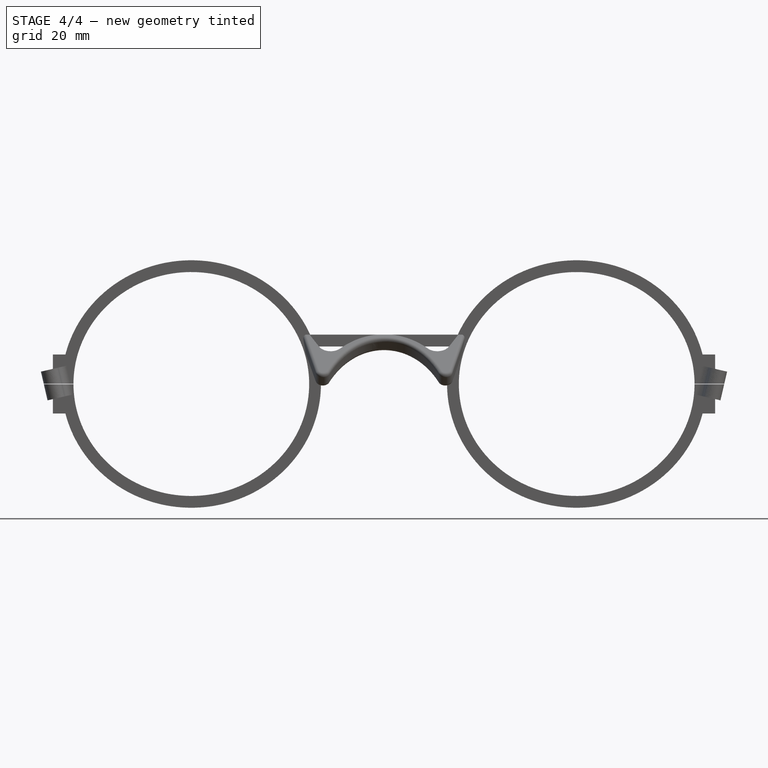
[diagram: stage 4 of 4 — front view after this stage's code; geometry added in this stage tinted green]
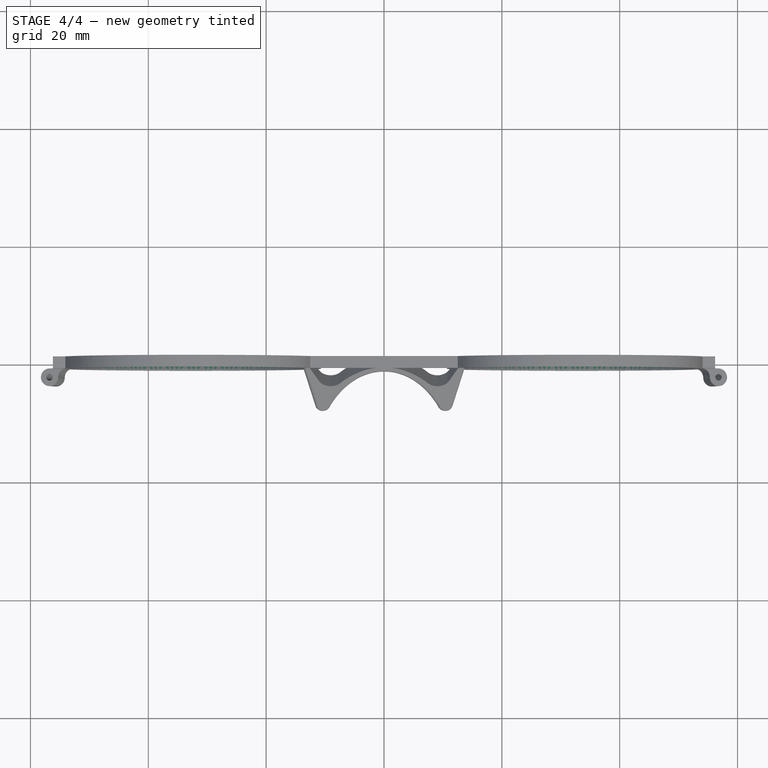
[diagram: stage 4 of 4 — top view after this stage's code; geometry added in this stage tinted green]
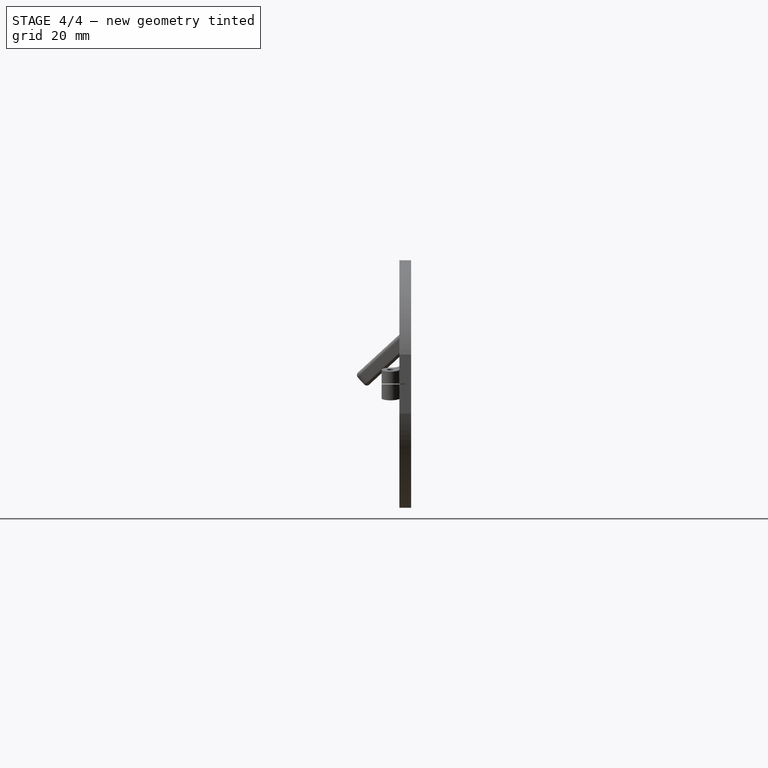
[diagram: stage 4 of 4 — right view after this stage's code; geometry added in this stage tinted green]
FEATURE [PartDesign::Pocket] Pocket  label="Frame opening slits"
  BaseFeature = -> Mirrored
  Direction = (0,1,-2e-16)
  Length = 5
  Length2 = 5
  Midplane = true
  Placement = pos=(0,0,0) rot=(1,0,0;1.5708rad)
  Profile = -> Sketch013
  ReferenceAxis = -> Sketch013 [N_Axis]
  Refine = true
  Suppressed = false
  Type = 1
FEATURE [Sketcher::SketchObject] Sketch015  label="Right lens groove profile"
  ArcFitTolerance = 1e-06
  AttachmentSupport = -> [DatumPlane001]
  ExternalGeometry = -> [Pocket]
  ExternalTypes = [0]
  FullyConstrained = true
  MakeInternals = false
  MapMode = 5
  Placement = pos=(52.6406,3e-16,1.4634) rot=(0.999177,0,0.040558;3.14159rad)
  sketch-geometry (6):
    g0: LineSegment StartX=0 StartY=0.85 StartZ=0 EndX=0.490748 EndY=0 EndZ=0
    g1: LineSegment StartX=0 StartY=-0.85 StartZ=0 EndX=0.490748 EndY=0 EndZ=0
    g2: LineSegment [constr] StartX=0 StartY=-0.85 StartZ=0 EndX=0 EndY=0.85 EndZ=0
    g3: LineSegment StartX=0 StartY=0.85 StartZ=0 EndX=-0.490748 EndY=1.7 EndZ=0
    g4: LineSegment StartX=-0.490748 StartY=1.7 StartZ=0 EndX=-0.490748 EndY=-1.7 EndZ=0
    g5: LineSegment StartX=-0.490748 StartY=-1.7 StartZ=0 EndX=0 EndY=-0.85 EndZ=0
  constraints (17):
    c: PointOnObject(g0,g-2)
    c: PointOnObject(g0,g-1)
    c: PointOnObject(g1,g-2)
    c: Coincident(g1,g0)
    c: Coincident(g2,g1)
    c: Coincident(g2,g0)
    c: Angle(g0,g1) = 2.0944
    c: Equal(g1,g0)
    c: Coincident(g0,g3)
    c: Coincident(g3,g4)
    c: Vertical(g4)
    c: Coincident(g4,g5)
    c: Coincident(g5,g1)
    c: Parallel(g5,g1)
    c: Equal(g5,g1)
    c: Parallel(g3,g0)
    c: Distance(g1,g-4) = 0.15
FEATURE [PartDesign::SubtractivePipe] SubtractivePipe  label="Right lens groove"
  AuxilleryCurvelinear = true
  AuxillerySpineTangent = false
  BaseFeature = -> Pocket
  Binormal = (0,0,0)
  Mode = 0
  Placement = pos=(0,0,0) rot=(1,0,0;1.5708rad)
  Profile = -> Sketch015
  Refine = true
  Spine = -> Sketch014 [Edge1]
  SpineTangent = false
  Suppressed = false
  Transformation = 0
  Transition = 0
FEATURE [Sketcher::SketchObject] Sketch016  label="Left lens groove profile"
  ArcFitTolerance = 1e-06
  AttachmentSupport = -> [DatumPlane002]
  ExternalGeometry = -> [SubtractivePipe,Sketch015]
  ExternalTypes = [0]
  FullyConstrained = true
  MakeInternals = false
  MapMode = 5
  Placement = pos=(-52.6406,3e-16,1.4634) rot=(0.040558,0,0.999177;3.14159rad)
  sketch-geometry (6):
    g0: LineSegment [constr] StartX=0 StartY=0.85 StartZ=0 EndX=0 EndY=-0.85 EndZ=0
    g1: LineSegment StartX=0 StartY=-0.85 StartZ=0 EndX=0.490748 EndY=0 EndZ=0
    g2: LineSegment StartX=0.490748 StartY=0 StartZ=0 EndX=0 EndY=0.85 EndZ=0
    g3: LineSegment StartX=0 StartY=0.85 StartZ=0 EndX=-0.490748 EndY=1.7 EndZ=0
    g4: LineSegment StartX=-0.490748 StartY=1.7 StartZ=0 EndX=-0.490748 EndY=-1.7 EndZ=0
    g5: LineSegment StartX=-0.490748 StartY=-1.7 StartZ=0 EndX=0 EndY=-0.85 EndZ=0
  constraints (17):
    c: PointOnObject(g0,g-2)
    c: PointOnObject(g0,g-2)
    c: Coincident(g1,g0)
    c: PointOnObject(g1,g-1)
    c: Coincident(g2,g1)
    c: Coincident(g2,g0)
    c: Equal(g2,g1)
    c: Angle(g2,g1) = 2.0944
    c: Coincident(g0,g3)
    c: Coincident(g3,g4)
    c: Vertical(g4)
    c: Coincident(g4,g5)
    c: Coincident(g5,g0)
    c: Parallel(g5,g1)
    c: Equal(g5,g1)
    c: Parallel(g3,g2)
    c: Equal(g4,g-5)
FEATURE [PartDesign::SubtractivePipe] SubtractivePipe001  label="Left lens groove"
  AuxilleryCurvelinear = true
  AuxillerySpineTangent = false
  BaseFeature = -> SubtractivePipe
  Binormal = (0,0,0)
  Mode = 0
  Placement = pos=(0,0,0) rot=(1,0,0;1.5708rad)
  Profile = -> Sketch016
  Spine = -> Sketch014 [Edge2]
  SpineTangent = false
  Suppressed = false
  Transformation = 0
  Transition = 0
FEATURE [PartDesign::Body] Body
  AllowCompound = false
  Group = -> [Sketch,Pad,Sketch001,Sketch002,DatumPlane,Sketch003,Pad001,Sketch010,Pocket002,Sketch011,Pocket003,Fillet,Sketch008,Sketch012,DatumPlane003,Sketch017,Pad003,Sketch013,DatumPlane004,DatumPlane005,DatumLine001,Sketch018,Sketch019,AdditiveLoft,Mirrored,Pocket,Sketch014,DatumPlane001,Sketch015,SubtractivePipe,DatumPlane002,Sketch016,SubtractivePipe001]
  Origin = -> Origin
  Tip = -> SubtractivePipe001
FEATURE [App::Point] Origin001  label="Origin"
  Role = Origin
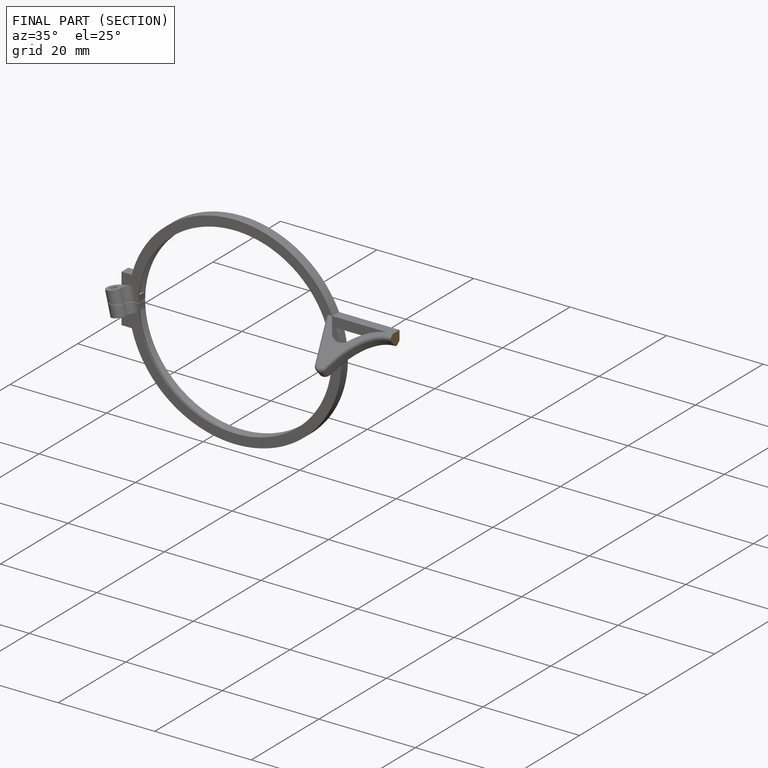
[diagram: finished part — half-section view (interior)]
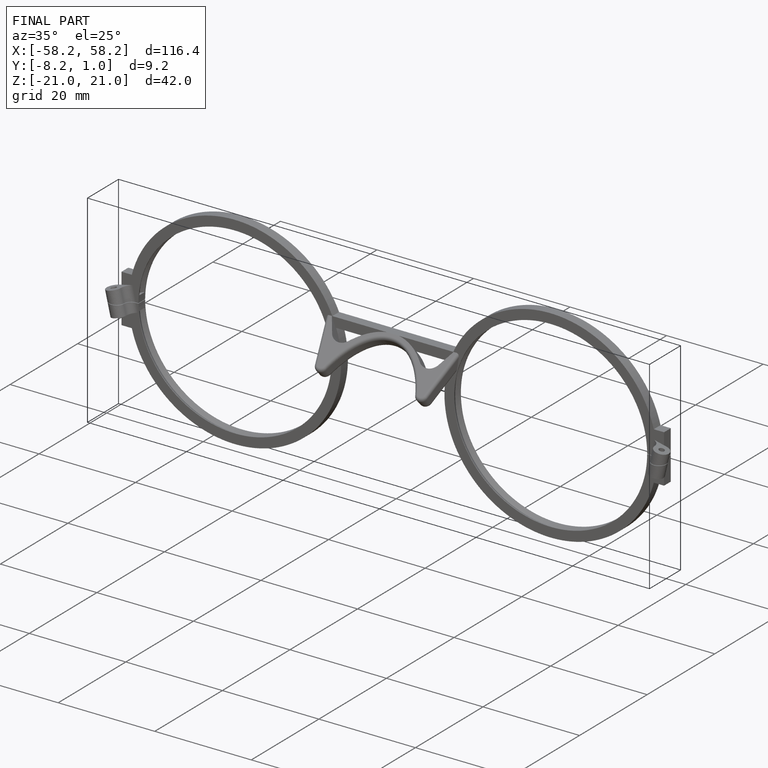
[diagram: finished part — iso view with bounding-box wireframe]
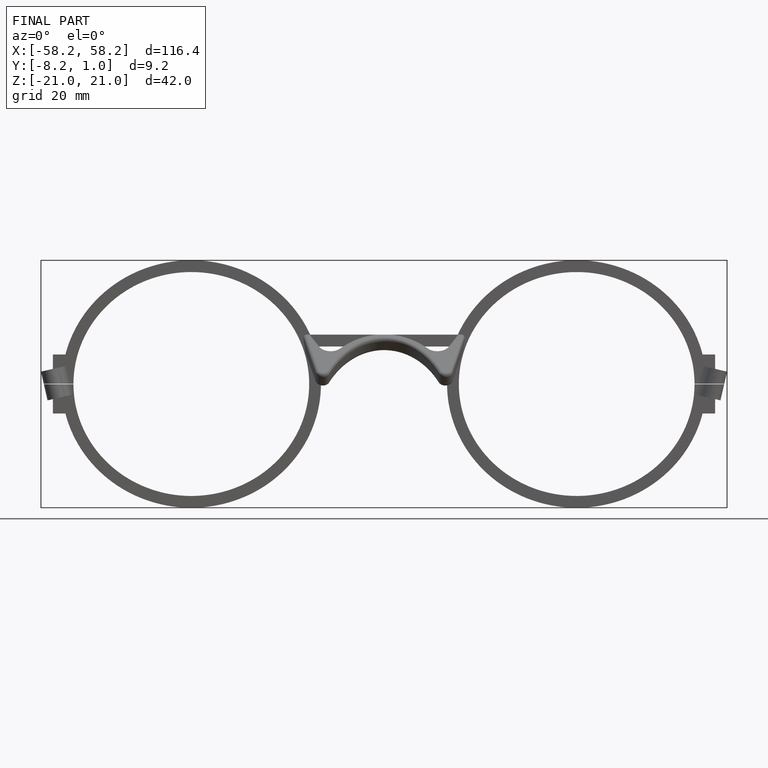
[diagram: finished part — front view with bounding-box wireframe]
